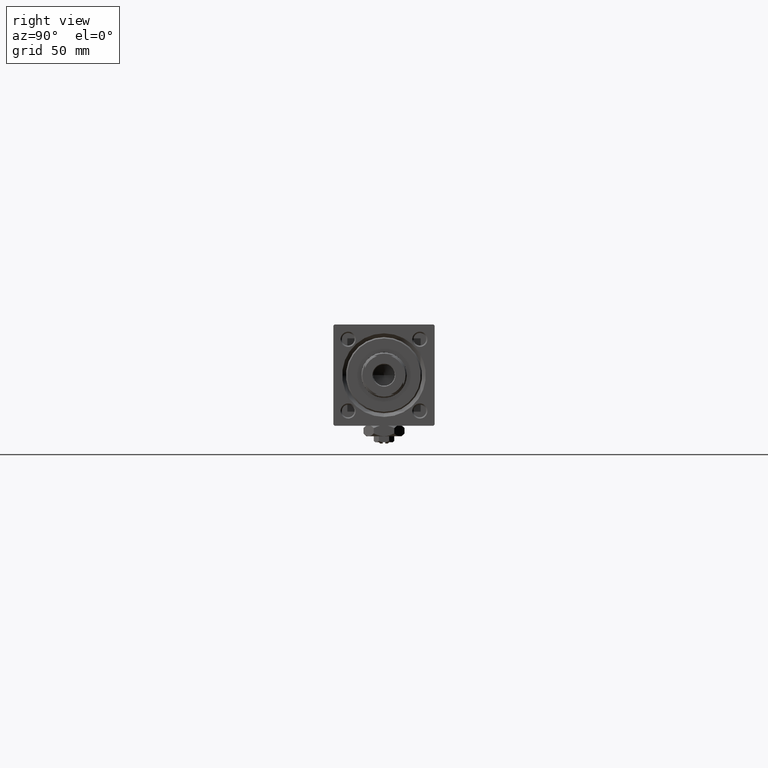
[diagram: clean part render]
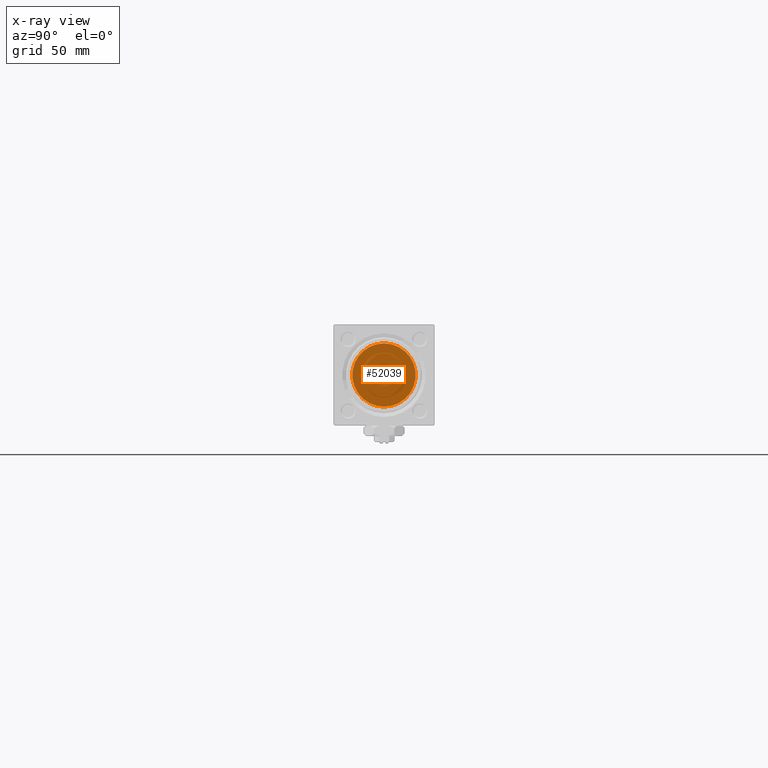
[diagram: x-ray — body ghosted, one internal face saturated and labeled with its STEP entity id]
A machine part, right view, then the same camera in x-ray: the body is ghosted and one INTERNAL B-rep face — a face not visible from any outside direction — is saturated and labeled: STEP entity #52039.
In plain terms, the highlighted planar face has unit normal (-1, 0, 0).
Its self-contained STEP definition (entity closure, byte-faithful):
#228 = CIRCLE ( 'NONE', #18720, 12.49999999999999645 ) ;
#2889 = CARTESIAN_POINT ( 'NONE',  ( 23.99999999999999289, 4.286263797015736595E-16, -3.500000000000000000 ) ) ;
#3329 = ORIENTED_EDGE ( 'NONE', *, *, #17307, .T. ) ;
#5534 = DIRECTION ( 'NONE',  ( -1.000000000000000000, -0.000000000000000000, -0.000000000000000000 ) ) ;
#5761 = ORIENTED_EDGE ( 'NONE', *, *, #38410, .T. ) ;
#5861 = CARTESIAN_POINT ( 'NONE',  ( 24.00000000000000000, -2.602085213965210642E-15, 0.000000000000000000 ) ) ;
#6409 = EDGE_CURVE ( 'NONE', #49221, #10467, #31299, .T. ) ;
#6869 = FACE_BOUND ( 'NONE', #38567, .T. ) ;
#10467 = VERTEX_POINT ( 'NONE', #26380 ) ;
#12119 = DIRECTION ( 'NONE',  ( 0.000000000000000000, 0.000000000000000000, 1.000000000000000000 ) ) ;
#13777 = DIRECTION ( 'NONE',  ( 0.000000000000000000, 0.000000000000000000, -1.000000000000000000 ) ) ;
#15049 = FACE_OUTER_BOUND ( 'NONE', #26344, .T. ) ;
#15823 = DIRECTION ( 'NONE',  ( -1.000000000000000000, 0.000000000000000000, -0.000000000000000000 ) ) ;
#17307 = EDGE_CURVE ( 'NONE', #35250, #31660, #46661, .T. ) ;
#18609 = CIRCLE ( 'NONE', #41293, 3.500000000000000000 ) ;
#18720 = AXIS2_PLACEMENT_3D ( 'NONE', #5861, #30101, #13777 ) ;
#18987 = AXIS2_PLACEMENT_3D ( 'NONE', #19264, #15823, #35329 ) ;
#19264 = CARTESIAN_POINT ( 'NONE',  ( 24.00000000000000000, 0.000000000000000000, 0.000000000000000000 ) ) ;
#21772 = DIRECTION ( 'NONE',  ( 1.000000000000000000, 0.000000000000000000, 0.000000000000000000 ) ) ;
#23965 = AXIS2_PLACEMENT_3D ( 'NONE', #28993, #5534, #49811 ) ;
#26344 = EDGE_LOOP ( 'NONE', ( #32232, #36651 ) ) ;
#26380 = CARTESIAN_POINT ( 'NONE',  ( 24.00000000000000000, -2.602085213965210642E-15, 12.49999999999999645 ) ) ;
#27665 = CARTESIAN_POINT ( 'NONE',  ( 23.99999999999999289, 0.000000000000000000, 0.000000000000000000 ) ) ;
#28993 = CARTESIAN_POINT ( 'NONE',  ( 23.99999999999999289, 0.000000000000000000, 0.000000000000000000 ) ) ;
#30101 = DIRECTION ( 'NONE',  ( 1.000000000000000000, 0.000000000000000000, 0.000000000000000000 ) ) ;
#31299 = CIRCLE ( 'NONE', #38038, 12.49999999999999645 ) ;
#31660 = VERTEX_POINT ( 'NONE', #46065 ) ;
#32232 = ORIENTED_EDGE ( 'NONE', *, *, #44590, .T. ) ;
#33363 = DIRECTION ( 'NONE',  ( 0.000000000000000000, 0.000000000000000000, -1.000000000000000000 ) ) ;
#35250 = VERTEX_POINT ( 'NONE', #2889 ) ;
#35329 = DIRECTION ( 'NONE',  ( -0.000000000000000000, 0.000000000000000000, 1.000000000000000000 ) ) ;
#36651 = ORIENTED_EDGE ( 'NONE', *, *, #6409, .T. ) ;
#38038 = AXIS2_PLACEMENT_3D ( 'NONE', #41535, #21772, #33363 ) ;
#38410 = EDGE_CURVE ( 'NONE', #31660, #35250, #18609, .T. ) ;
#38567 = EDGE_LOOP ( 'NONE', ( #5761, #3329 ) ) ;
#41293 = AXIS2_PLACEMENT_3D ( 'NONE', #27665, #51903, #12119 ) ;
#41535 = CARTESIAN_POINT ( 'NONE',  ( 24.00000000000000000, -2.602085213965210642E-15, 0.000000000000000000 ) ) ;
#44590 = EDGE_CURVE ( 'NONE', #10467, #49221, #228, .T. ) ;
#46065 = CARTESIAN_POINT ( 'NONE',  ( 23.99999999999999289, 0.000000000000000000, 3.500000000000000000 ) ) ;
#46661 = CIRCLE ( 'NONE', #23965, 3.500000000000000000 ) ;
#46755 = CARTESIAN_POINT ( 'NONE',  ( 24.00000000000000000, -1.071276715031019515E-15, -12.49999999999999645 ) ) ;
#49221 = VERTEX_POINT ( 'NONE', #46755 ) ;
#49811 = DIRECTION ( 'NONE',  ( 0.000000000000000000, 0.000000000000000000, 1.000000000000000000 ) ) ;
#51401 = PLANE ( 'NONE',  #18987 ) ;
#51903 = DIRECTION ( 'NONE',  ( -1.000000000000000000, -0.000000000000000000, -0.000000000000000000 ) ) ;
#52039 = ADVANCED_FACE ( 'NONE', ( #6869, #15049 ), #51401, .F. ) ;